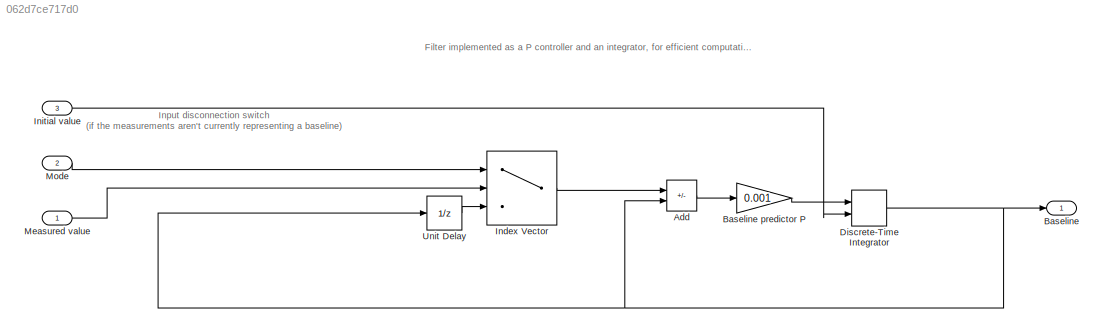
MODEL slx_062d7ce717d0
KIND model
CONFIG AbsTol = auto
CONFIG EnableMultiTasking = off
CONFIG FixedStep = 1
CONFIG MaxStep = auto
CONFIG MinStep = auto
CONFIG RelTol = 1e-3
CONFIG SampleTimeConstraint = Unconstrained
CONFIG Solver = FixedStepDiscrete
CONFIG SolverName = FixedStepDiscrete
CONFIG StartTime = 0.0
CONFIG StopTime = 10.0
BLOCK [Sum] Add
  IconShape = rectangular
  Inputs = +-
  Ports = [2, 1]
BLOCK [Outport] Baseline
BLOCK [Gain] Baseline predictor P
  Gain = 0.001
BLOCK [DiscreteIntegrator] Discrete-Time Integrator
  ICPrevOutput = DiscIntNeverNeededParam
  ICPrevScaledInput = DiscIntNeverNeededParam
  InitialConditionSetting = Auto
  InitialConditionSource = external
  Ports = [2, 1]
  SampleTime = -1
BLOCK [MultiPortSwitch] Index Vector
  DataPortOrder = Zero-based contiguous
  InputSameDT = off
  Inputs = 2
  Ports = [3, 1]
  SaturateOnIntegerOverflow = off
  zeroidx = on
BLOCK [Inport] Initial value
  Port = 3
BLOCK [Inport] Measured value
BLOCK [Inport] Mode
  Port = 2
BLOCK [UnitDelay] Unit Delay
  HasFrameUpgradeWarning = on
  SampleTime = -1
ANNOTATION (root): Filter implemented as a P controller and an integrator, for efficient computation
ANNOTATION (root): Input disconnection switch (if the measurements aren't currently representing a baseline)
LINE Add:1 -> Baseline predictor P:1
LINE Baseline predictor P:1 -> Discrete-Time Integrator:1
NET Discrete-Time Integrator:1 -> Add:2, Baseline:1, Unit Delay:1
LINE Index Vector:1 -> Add:1
LINE Initial value:1 -> Discrete-Time Integrator:2
LINE Measured value:1 -> Index Vector:2
LINE Mode:1 -> Index Vector:1
LINE Unit Delay:1 -> Index Vector:3
note: NET lines group one-source signal fan-out (src -> all destinations, sorted); 1:1 wires keep LINE
